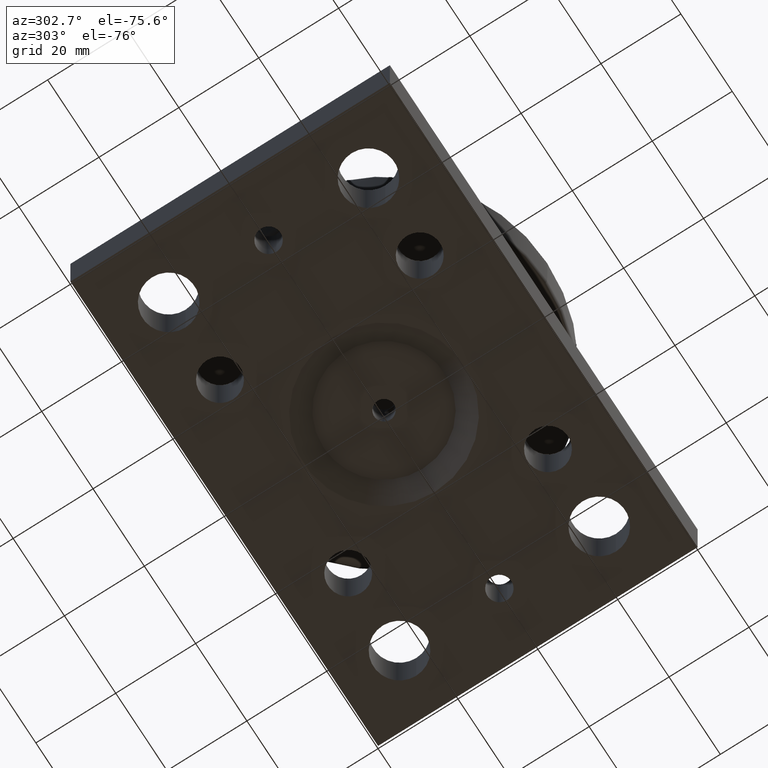
[diagram: clean part render]
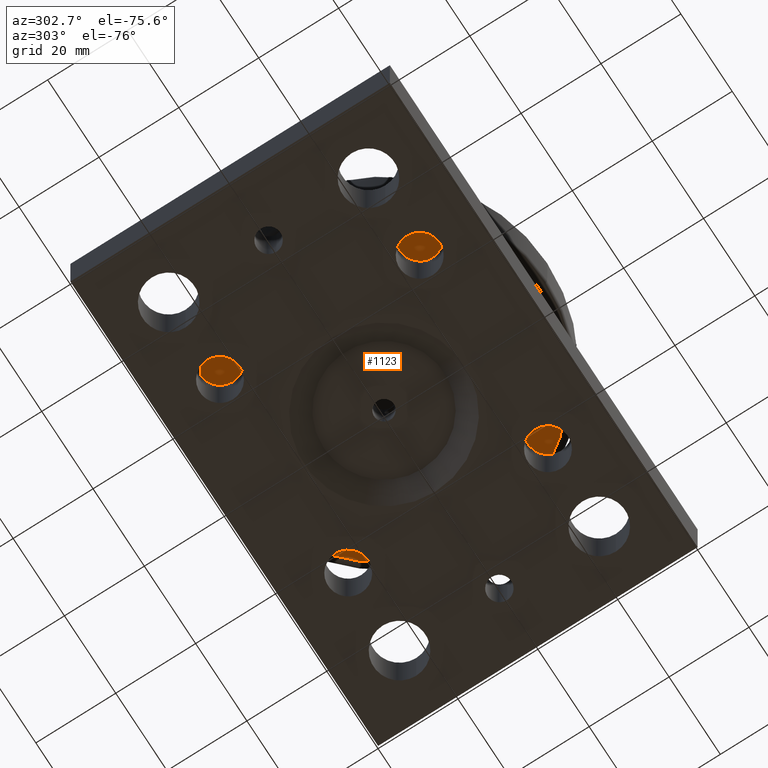
[diagram: same view with one face highlighted and labeled with its STEP entity id]
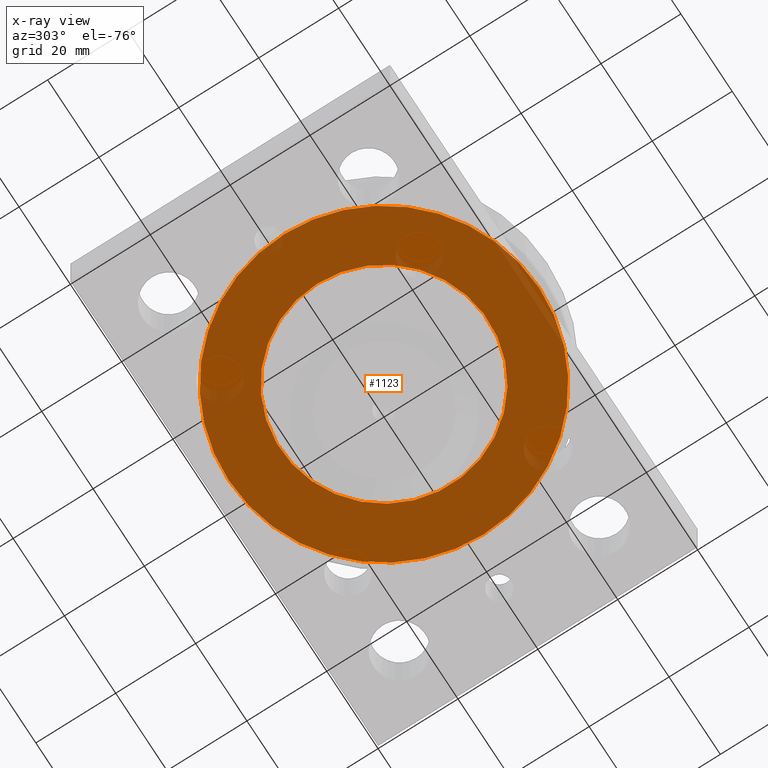
[diagram: x-ray of the same camera — body ghosted, the highlighted face saturated]
A machine part, auxiliary view. The second image highlights one B-rep face of the part: STEP entity #1123.
The next image is the same camera in x-ray: the body ghosted, the highlighted face saturated — about 93% of this face is hidden behind the body in this view.
In plain terms, the highlighted planar face has unit normal (0, -0, -1).
Its self-contained STEP definition (entity closure, byte-faithful):
#70=FACE_BOUND('',#297,.T.);
#122=CIRCLE('',#1254,38.835348008682);
#123=CIRCLE('',#1255,38.835348008682);
#133=CIRCLE('',#1269,26.);
#207=FACE_OUTER_BOUND('',#296,.T.);
#296=EDGE_LOOP('',(#1006,#1007));
#297=EDGE_LOOP('',(#1008));
#555=VERTEX_POINT('',#1992);
#556=VERTEX_POINT('',#1994);
#564=VERTEX_POINT('',#2047);
#702=EDGE_CURVE('',#555,#556,#122,.T.);
#703=EDGE_CURVE('',#556,#555,#123,.T.);
#716=EDGE_CURVE('',#564,#564,#133,.T.);
#1006=ORIENTED_EDGE('',*,*,#703,.F.);
#1007=ORIENTED_EDGE('',*,*,#702,.F.);
#1008=ORIENTED_EDGE('',*,*,#716,.T.);
#1069=PLANE('',#1268);
#1123=ADVANCED_FACE('',(#207,#70),#1069,.T.);
#1254=AXIS2_PLACEMENT_3D('',#1995,#1558,#1559);
#1255=AXIS2_PLACEMENT_3D('',#1996,#1560,#1561);
#1268=AXIS2_PLACEMENT_3D('',#2046,#1589,#1590);
#1269=AXIS2_PLACEMENT_3D('',#2048,#1591,#1592);
#1558=DIRECTION('center_axis',(-2.4492935982947E-16,2.96389298347621E-32,
1.));
#1559=DIRECTION('ref_axis',(1.,-2.88998133608509E-16,2.4492935982947E-16));
#1560=DIRECTION('center_axis',(-2.4492935982947E-16,2.96389298347621E-32,
1.));
#1561=DIRECTION('ref_axis',(1.,-2.88998133608509E-16,2.4492935982947E-16));
#1589=DIRECTION('center_axis',(2.4492935982947E-16,-2.96389298347621E-32,
-1.));
#1590=DIRECTION('ref_axis',(-1.66533453693774E-16,-1.,-1.11500023686446E-32));
#1591=DIRECTION('center_axis',(-2.4492935982947E-16,2.96389298347621E-32,
1.));
#1592=DIRECTION('ref_axis',(1.,-1.66533453693774E-16,3.70507865871701E-17));
#1992=CARTESIAN_POINT('',(60.,1.16465199131795,25.5));
#1994=CARTESIAN_POINT('',(21.1646519913179,40.,25.5));
#1995=CARTESIAN_POINT('Origin',(60.,40.,25.5));
#1996=CARTESIAN_POINT('Origin',(60.,40.,25.5));
#2046=CARTESIAN_POINT('Origin',(24.897235330252,40.,25.5));
#2047=CARTESIAN_POINT('',(34.,40.,25.5));
#2048=CARTESIAN_POINT('Origin',(60.,40.,25.5));